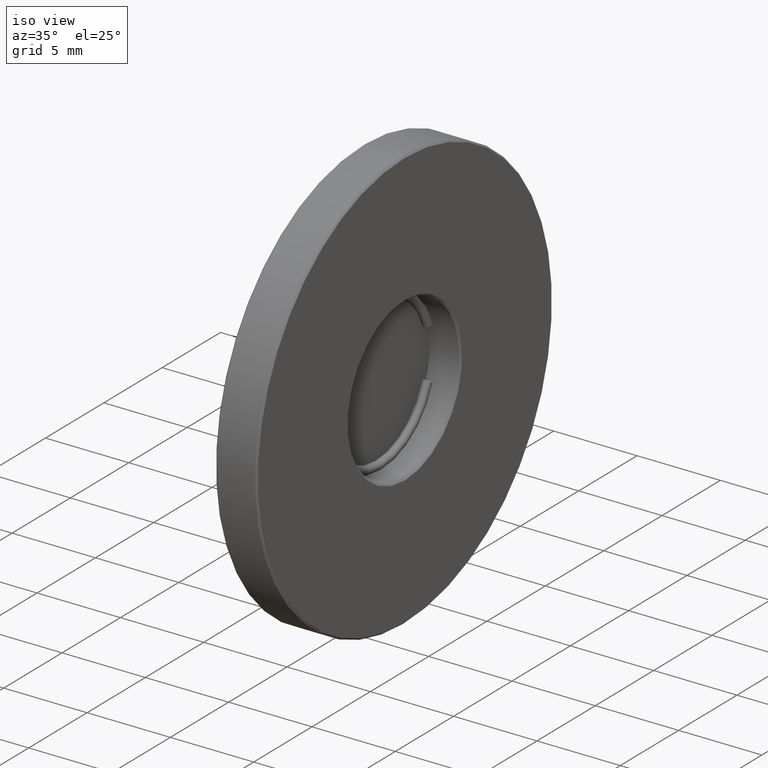
[diagram: clean part render]
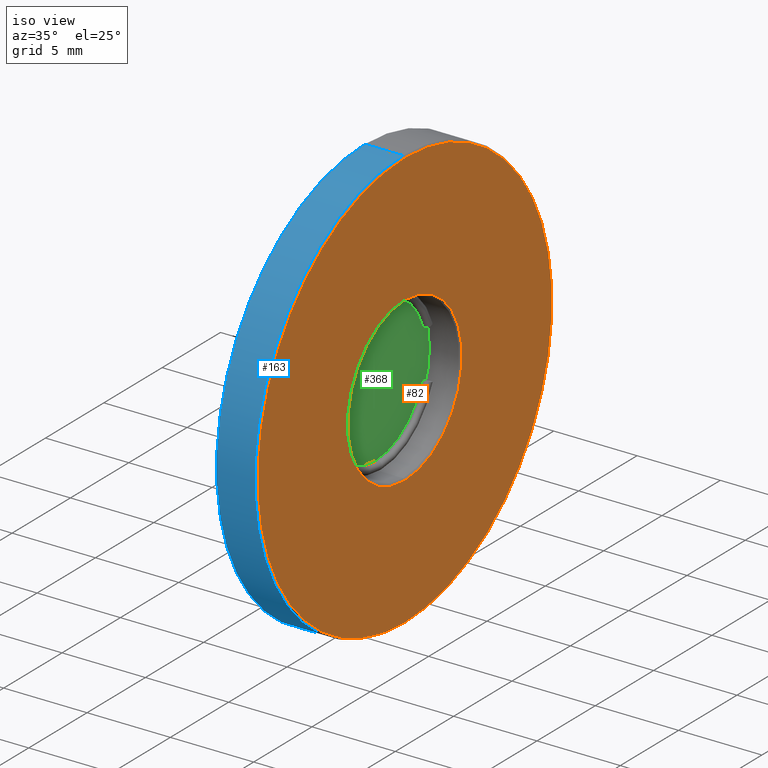
[diagram: same view with three faces highlighted in distinct colors, each labeled with its STEP entity id]
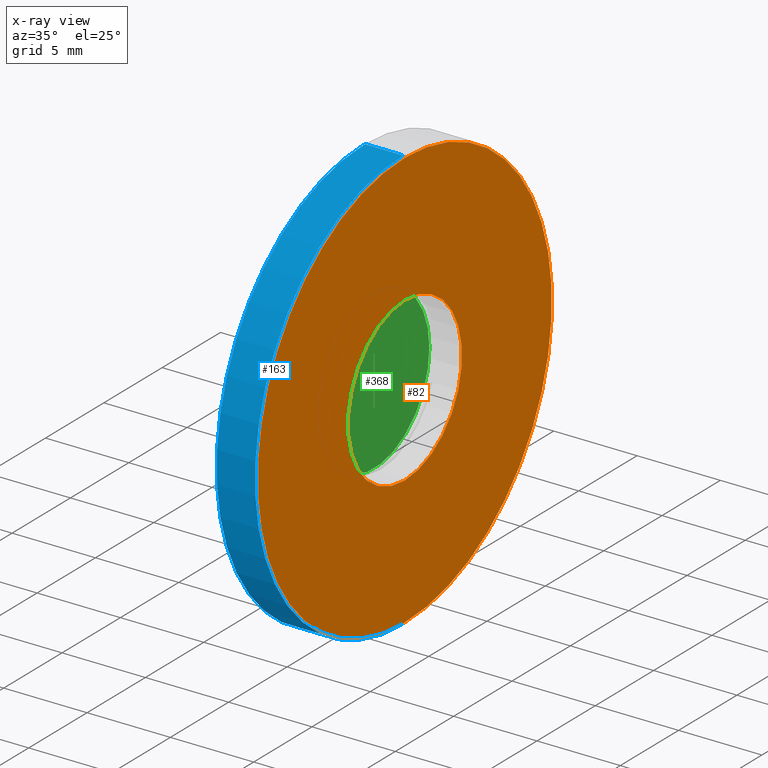
[diagram: x-ray of the same camera — body ghosted, the three highlighted faces saturated]
A machine part, iso view with three faces highlighted in distinct colors.
The next image is the same camera in x-ray (body ghosted, the three faces saturated) — at least one of them is partly hidden behind the body in this view.
Their STEP definitions:

[orange] entity #82 — the highlighted planar face has unit normal (1, 0, 0).
#19 = DIRECTION ( 'NONE',  ( 1.000000000000000000, 0.000000000000000000, 0.000000000000000000 ) ) ;
#41 = PLANE ( 'NONE',  #276 ) ;
#59 = EDGE_LOOP ( 'NONE', ( #66, #358 ) ) ;
#61 = CIRCLE ( 'NONE', #585, 12.59999999999999964 ) ;
#66 = ORIENTED_EDGE ( 'NONE', *, *, #771, .T. ) ;
#73 = VERTEX_POINT ( 'NONE', #892 ) ;
#82 = ADVANCED_FACE ( 'NONE', ( #392, #404 ), #41, .T. ) ;
#203 = CARTESIAN_POINT ( 'NONE',  ( -2.434863851252999645, 1.436758841085000071, 38.00000000000000000 ) ) ;
#220 = VERTEX_POINT ( 'NONE', #346 ) ;
#225 = CARTESIAN_POINT ( 'NONE',  ( -2.434863851252999645, 1.436758841085000071, 25.39999999999999858 ) ) ;
#235 = CARTESIAN_POINT ( 'NONE',  ( -2.434863851252999645, 1.436758841085000071, 25.39999999999999858 ) ) ;
#247 = DIRECTION ( 'NONE',  ( 1.000000000000000000, 0.000000000000000000, 0.000000000000000000 ) ) ;
#276 = AXIS2_PLACEMENT_3D ( 'NONE', #685, #19, #384 ) ;
#280 = EDGE_LOOP ( 'NONE', ( #866, #438 ) ) ;
#283 = EDGE_CURVE ( 'NONE', #73, #741, #443, .T. ) ;
#346 = CARTESIAN_POINT ( 'NONE',  ( -2.434863851252999645, 1.436758841085001626, 12.79999999999999893 ) ) ;
#358 = ORIENTED_EDGE ( 'NONE', *, *, #663, .T. ) ;
#380 = EDGE_CURVE ( 'NONE', #741, #73, #926, .T. ) ;
#384 = DIRECTION ( 'NONE',  ( 0.000000000000000000, 1.000000000000000000, 0.000000000000000000 ) ) ;
#392 = FACE_BOUND ( 'NONE', #280, .T. ) ;
#404 = FACE_OUTER_BOUND ( 'NONE', #59, .T. ) ;
#406 = CARTESIAN_POINT ( 'NONE',  ( -2.434863851252999645, 1.436758841085000071, 25.39999999999999858 ) ) ;
#430 = AXIS2_PLACEMENT_3D ( 'NONE', #235, #247, #600 ) ;
#438 = ORIENTED_EDGE ( 'NONE', *, *, #380, .T. ) ;
#443 = CIRCLE ( 'NONE', #584, 4.900000000000001243 ) ;
#455 = CARTESIAN_POINT ( 'NONE',  ( -2.434863851252999645, 1.436758841085000737, 30.30000000000000071 ) ) ;
#481 = CARTESIAN_POINT ( 'NONE',  ( -2.434863851252999645, 1.436758841085000071, 25.39999999999999858 ) ) ;
#494 = DIRECTION ( 'NONE',  ( -1.000000000000000000, 0.000000000000000000, 0.000000000000000000 ) ) ;
#520 = AXIS2_PLACEMENT_3D ( 'NONE', #225, #725, #739 ) ;
#584 = AXIS2_PLACEMENT_3D ( 'NONE', #481, #494, #723 ) ;
#585 = AXIS2_PLACEMENT_3D ( 'NONE', #406, #695, #849 ) ;
#600 = DIRECTION ( 'NONE',  ( 0.000000000000000000, 0.000000000000000000, -1.000000000000000000 ) ) ;
#663 = EDGE_CURVE ( 'NONE', #220, #888, #61, .T. ) ;
#685 = CARTESIAN_POINT ( 'NONE',  ( -2.434863851252999645, 1.436758841085000071, 25.39999999999999858 ) ) ;
#695 = DIRECTION ( 'NONE',  ( 1.000000000000000000, 0.000000000000000000, 0.000000000000000000 ) ) ;
#723 = DIRECTION ( 'NONE',  ( 0.000000000000000000, 0.000000000000000000, -1.000000000000000000 ) ) ;
#725 = DIRECTION ( 'NONE',  ( -1.000000000000000000, 0.000000000000000000, 0.000000000000000000 ) ) ;
#739 = DIRECTION ( 'NONE',  ( 0.000000000000000000, 0.000000000000000000, -1.000000000000000000 ) ) ;
#741 = VERTEX_POINT ( 'NONE', #455 ) ;
#771 = EDGE_CURVE ( 'NONE', #888, #220, #777, .T. ) ;
#777 = CIRCLE ( 'NONE', #430, 12.59999999999999964 ) ;
#849 = DIRECTION ( 'NONE',  ( 0.000000000000000000, 0.000000000000000000, -1.000000000000000000 ) ) ;
#866 = ORIENTED_EDGE ( 'NONE', *, *, #283, .T. ) ;
#888 = VERTEX_POINT ( 'NONE', #203 ) ;
#892 = CARTESIAN_POINT ( 'NONE',  ( -2.434863851252999645, 1.436758841085000071, 20.49999999999999645 ) ) ;
#926 = CIRCLE ( 'NONE', #520, 4.900000000000001243 ) ;

[blue] entity #163 — the highlighted cylindrical surface (partial cylindrical patch) has radius 12.7 mm, axis along (-1, 0, 0).
#28 = LINE ( 'NONE', #318, #379 ) ;
#58 = DIRECTION ( 'NONE',  ( -1.000000000000000000, 0.000000000000000000, 0.000000000000000000 ) ) ;
#119 = ORIENTED_EDGE ( 'NONE', *, *, #405, .T. ) ;
#124 = DIRECTION ( 'NONE',  ( 0.000000000000000000, 0.000000000000000000, 1.000000000000000000 ) ) ;
#142 = DIRECTION ( 'NONE',  ( 0.000000000000000000, 0.000000000000000000, -1.000000000000000000 ) ) ;
#158 = ORIENTED_EDGE ( 'NONE', *, *, #881, .T. ) ;
#161 = VERTEX_POINT ( 'NONE', #282 ) ;
#163 = ADVANCED_FACE ( 'NONE', ( #936 ), #770, .T. ) ;
#208 = CARTESIAN_POINT ( 'NONE',  ( -4.834863851252999112, 1.436758841085000071, 25.39999999999999858 ) ) ;
#212 = VECTOR ( 'NONE', #919, 1000.000000000000000 ) ;
#264 = CARTESIAN_POINT ( 'NONE',  ( -4.834863851252999112, 1.436758841085001626, 12.69999999999999929 ) ) ;
#282 = CARTESIAN_POINT ( 'NONE',  ( -2.534863851253000178, 1.436758841085000071, 38.09999999999999432 ) ) ;
#292 = DIRECTION ( 'NONE',  ( 0.000000000000000000, 0.000000000000000000, -1.000000000000000000 ) ) ;
#299 = AXIS2_PLACEMENT_3D ( 'NONE', #879, #448, #292 ) ;
#305 = VERTEX_POINT ( 'NONE', #357 ) ;
#318 = CARTESIAN_POINT ( 'NONE',  ( -2.434863851252999645, 1.436758841085000071, 38.09999999999999432 ) ) ;
#351 = EDGE_CURVE ( 'NONE', #852, #161, #395, .T. ) ;
#357 = CARTESIAN_POINT ( 'NONE',  ( -4.834863851252999112, 1.436758841085000071, 38.09999999999999432 ) ) ;
#379 = VECTOR ( 'NONE', #773, 1000.000000000000000 ) ;
#395 = CIRCLE ( 'NONE', #299, 12.69999999999999929 ) ;
#405 = EDGE_CURVE ( 'NONE', #305, #592, #428, .T. ) ;
#417 = CARTESIAN_POINT ( 'NONE',  ( -2.434863851252999645, 1.436758841085001626, 12.69999999999999929 ) ) ;
#428 = CIRCLE ( 'NONE', #610, 12.69999999999999929 ) ;
#448 = DIRECTION ( 'NONE',  ( -1.000000000000000000, 0.000000000000000000, 0.000000000000000000 ) ) ;
#477 = CARTESIAN_POINT ( 'NONE',  ( -2.534863851253000178, 1.436758841085001626, 12.69999999999999929 ) ) ;
#592 = VERTEX_POINT ( 'NONE', #264 ) ;
#610 = AXIS2_PLACEMENT_3D ( 'NONE', #208, #797, #142 ) ;
#701 = LINE ( 'NONE', #417, #212 ) ;
#709 = ORIENTED_EDGE ( 'NONE', *, *, #909, .F. ) ;
#719 = AXIS2_PLACEMENT_3D ( 'NONE', #774, #58, #124 ) ;
#770 = CYLINDRICAL_SURFACE ( 'NONE', #719, 12.69999999999999574 ) ;
#773 = DIRECTION ( 'NONE',  ( -1.000000000000000000, 0.000000000000000000, 0.000000000000000000 ) ) ;
#774 = CARTESIAN_POINT ( 'NONE',  ( -2.434863851252999645, 1.436758841085000071, 25.39999999999999858 ) ) ;
#782 = ORIENTED_EDGE ( 'NONE', *, *, #351, .T. ) ;
#797 = DIRECTION ( 'NONE',  ( 1.000000000000000000, 0.000000000000000000, 0.000000000000000000 ) ) ;
#808 = EDGE_LOOP ( 'NONE', ( #709, #782, #158, #119 ) ) ;
#852 = VERTEX_POINT ( 'NONE', #477 ) ;
#879 = CARTESIAN_POINT ( 'NONE',  ( -2.534863851253000178, 1.436758841085000071, 25.39999999999999858 ) ) ;
#881 = EDGE_CURVE ( 'NONE', #161, #305, #28, .T. ) ;
#909 = EDGE_CURVE ( 'NONE', #852, #592, #701, .T. ) ;
#919 = DIRECTION ( 'NONE',  ( -1.000000000000000000, 0.000000000000000000, 0.000000000000000000 ) ) ;
#936 = FACE_OUTER_BOUND ( 'NONE', #808, .T. ) ;

[green] entity #368 — the highlighted planar face has unit normal (1, 0, 0).
#7 = VERTEX_POINT ( 'NONE', #677 ) ;
#9 = CIRCLE ( 'NONE', #197, 4.750000000000000000 ) ;
#10 = EDGE_CURVE ( 'NONE', #7, #591, #9, .T. ) ;
#13 = DIRECTION ( 'NONE',  ( 0.000000000000000000, 0.000000000000000000, -1.000000000000000000 ) ) ;
#24 = DIRECTION ( 'NONE',  ( 0.000000000000000000, -1.000000000000000000, 0.000000000000000000 ) ) ;
#29 = DIRECTION ( 'NONE',  ( 1.000000000000000000, 0.000000000000000000, 0.000000000000000000 ) ) ;
#55 = EDGE_CURVE ( 'NONE', #367, #925, #388, .T. ) ;
#62 = VERTEX_POINT ( 'NONE', #91 ) ;
#80 = FACE_OUTER_BOUND ( 'NONE', #858, .T. ) ;
#91 = CARTESIAN_POINT ( 'NONE',  ( -4.284863851253000178, 1.424258841085000116, 26.89999999999999858 ) ) ;
#94 = EDGE_CURVE ( 'NONE', #737, #62, #321, .T. ) ;
#95 = LINE ( 'NONE', #325, #287 ) ;
#155 = FACE_BOUND ( 'NONE', #168, .T. ) ;
#168 = EDGE_LOOP ( 'NONE', ( #267, #353, #811, #293 ) ) ;
#176 = DIRECTION ( 'NONE',  ( 0.000000000000000000, -1.000000000000000000, 0.000000000000000000 ) ) ;
#197 = AXIS2_PLACEMENT_3D ( 'NONE', #243, #29, #24 ) ;
#222 = AXIS2_PLACEMENT_3D ( 'NONE', #728, #370, #301 ) ;
#243 = CARTESIAN_POINT ( 'NONE',  ( -4.284863851253000178, 1.436758841085000071, 25.39999999999999858 ) ) ;
#267 = ORIENTED_EDGE ( 'NONE', *, *, #762, .F. ) ;
#287 = VECTOR ( 'NONE', #308, 1000.000000000000000 ) ;
#293 = ORIENTED_EDGE ( 'NONE', *, *, #94, .F. ) ;
#301 = DIRECTION ( 'NONE',  ( 0.000000000000000000, -1.000000000000000000, 0.000000000000000000 ) ) ;
#308 = DIRECTION ( 'NONE',  ( 0.000000000000000000, 0.000000000000000000, 1.000000000000000000 ) ) ;
#314 = DIRECTION ( 'NONE',  ( 0.000000000000000000, 1.000000000000000000, 0.000000000000000000 ) ) ;
#321 = LINE ( 'NONE', #617, #400 ) ;
#325 = CARTESIAN_POINT ( 'NONE',  ( -4.284863851253000178, 1.449258841085000027, 26.89999999999999858 ) ) ;
#330 = CIRCLE ( 'NONE', #222, 4.750000000000000000 ) ;
#353 = ORIENTED_EDGE ( 'NONE', *, *, #55, .F. ) ;
#365 = DIRECTION ( 'NONE',  ( 1.000000000000000000, 0.000000000000000000, 0.000000000000000000 ) ) ;
#367 = VERTEX_POINT ( 'NONE', #657 ) ;
#368 = ADVANCED_FACE ( 'NONE', ( #155, #80 ), #800, .T. ) ;
#370 = DIRECTION ( 'NONE',  ( 1.000000000000000000, 0.000000000000000000, 0.000000000000000000 ) ) ;
#373 = EDGE_CURVE ( 'NONE', #591, #7, #330, .T. ) ;
#388 = LINE ( 'NONE', #542, #836 ) ;
#399 = CARTESIAN_POINT ( 'NONE',  ( -4.284863851253000178, 1.424258841085000116, 26.89999999999999858 ) ) ;
#400 = VECTOR ( 'NONE', #176, 1000.000000000000000 ) ;
#440 = CARTESIAN_POINT ( 'NONE',  ( -4.284863851253000178, 1.436758841085000071, 25.39999999999999858 ) ) ;
#488 = AXIS2_PLACEMENT_3D ( 'NONE', #440, #365, #664 ) ;
#542 = CARTESIAN_POINT ( 'NONE',  ( -4.284863851253000178, 1.449258841085000027, 23.89999999999999858 ) ) ;
#591 = VERTEX_POINT ( 'NONE', #769 ) ;
#617 = CARTESIAN_POINT ( 'NONE',  ( -4.284863851253000178, 1.449258841085000027, 26.89999999999999858 ) ) ;
#657 = CARTESIAN_POINT ( 'NONE',  ( -4.284863851253000178, 1.424258841085000116, 23.89999999999999858 ) ) ;
#664 = DIRECTION ( 'NONE',  ( 0.000000000000000000, 0.000000000000000000, -1.000000000000000000 ) ) ;
#677 = CARTESIAN_POINT ( 'NONE',  ( -4.284863851253000178, 6.186758841085000071, 25.39999999999999858 ) ) ;
#696 = CARTESIAN_POINT ( 'NONE',  ( -4.284863851253000178, 1.449258841085000027, 23.89999999999999858 ) ) ;
#728 = CARTESIAN_POINT ( 'NONE',  ( -4.284863851253000178, 1.436758841085000071, 25.39999999999999858 ) ) ;
#735 = ORIENTED_EDGE ( 'NONE', *, *, #373, .T. ) ;
#737 = VERTEX_POINT ( 'NONE', #934 ) ;
#760 = LINE ( 'NONE', #399, #764 ) ;
#762 = EDGE_CURVE ( 'NONE', #925, #737, #95, .T. ) ;
#764 = VECTOR ( 'NONE', #13, 1000.000000000000000 ) ;
#769 = CARTESIAN_POINT ( 'NONE',  ( -4.284863851253000178, -3.313241158914999929, 25.39999999999999858 ) ) ;
#800 = PLANE ( 'NONE',  #488 ) ;
#811 = ORIENTED_EDGE ( 'NONE', *, *, #830, .F. ) ;
#816 = ORIENTED_EDGE ( 'NONE', *, *, #10, .T. ) ;
#830 = EDGE_CURVE ( 'NONE', #62, #367, #760, .T. ) ;
#836 = VECTOR ( 'NONE', #314, 1000.000000000000000 ) ;
#858 = EDGE_LOOP ( 'NONE', ( #816, #735 ) ) ;
#925 = VERTEX_POINT ( 'NONE', #696 ) ;
#934 = CARTESIAN_POINT ( 'NONE',  ( -4.284863851253000178, 1.449258841085000027, 26.89999999999999858 ) ) ;